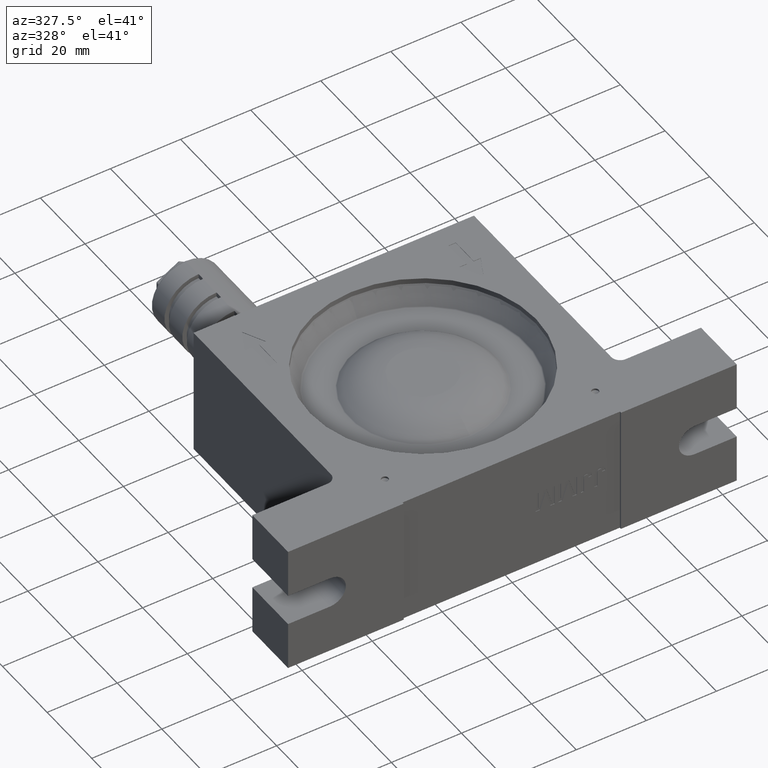
[diagram: clean part render]
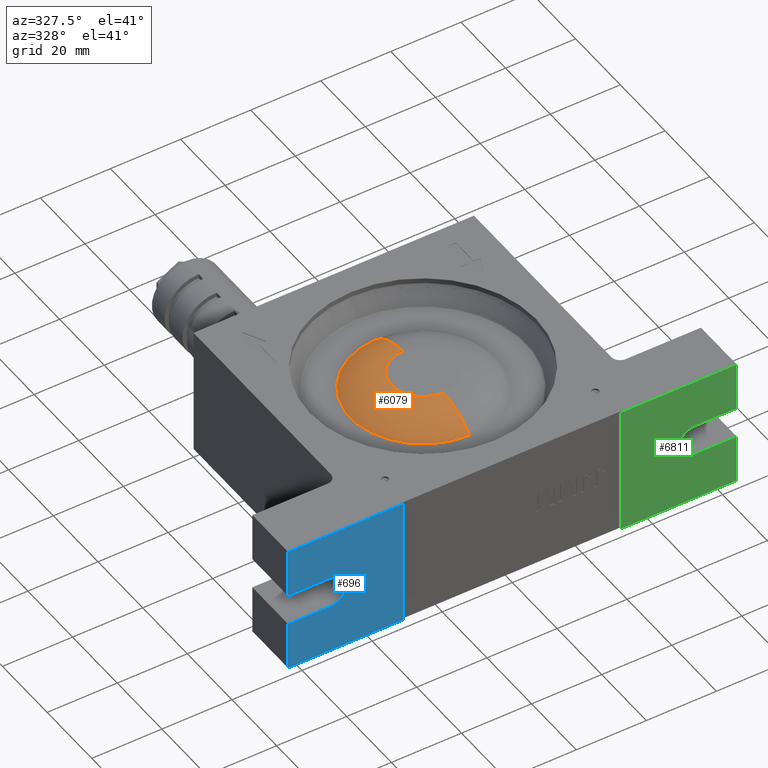
[diagram: same view with three faces highlighted in distinct colors, each labeled with its STEP entity id]
A machine part, auxiliary view with three faces highlighted in distinct colors.
Their STEP definitions:

[orange] entity #6079 — the highlighted toroidal blend (fillet) surface has major radius 9 mm and minor (blend) radius 16.8 mm.
#321 = AXIS2_PLACEMENT_3D ( 'NONE', #3349, #1087, #2191 ) ;
#433 = CARTESIAN_POINT ( 'NONE',  ( 3.427024385643870500E-015, 20.81392029005898400, 11.79450867052021800 ) ) ;
#641 = CARTESIAN_POINT ( 'NONE',  ( 1.356856098942547200E-015, 8.999999999999998200, -0.1500000000000091000 ) ) ;
#680 = EDGE_CURVE ( 'NONE', #3187, #2361, #4938, .T. ) ;
#732 = ORIENTED_EDGE ( 'NONE', *, *, #3168, .F. ) ;
#743 = DIRECTION ( 'NONE',  ( -2.889981336085087800E-016, -1.000000000000000000, 0.0000000000000000000 ) ) ;
#747 = ORIENTED_EDGE ( 'NONE', *, *, #5228, .T. ) ;
#1087 = DIRECTION ( 'NONE',  ( 8.602726321297810600E-018, 1.224606353822375800E-016, 1.000000000000000000 ) ) ;
#1288 = AXIS2_PLACEMENT_3D ( 'NONE', #1339, #3668, #743 ) ;
#1339 = CARTESIAN_POINT ( 'NONE',  ( -2.742928186777993200E-015, -9.000000000000001800, -0.1500000000000068800 ) ) ;
#2191 = DIRECTION ( 'NONE',  ( 1.665334536937734600E-016, 1.000000000000000000, 0.0000000000000000000 ) ) ;
#2361 = VERTEX_POINT ( 'NONE', #6377 ) ;
#2682 = VERTEX_POINT ( 'NONE', #4850 ) ;
#2703 = EDGE_CURVE ( 'NONE', #3187, #4899, #6901, .T. ) ;
#2741 = ORIENTED_EDGE ( 'NONE', *, *, #2703, .F. ) ;
#2990 = AXIS2_PLACEMENT_3D ( 'NONE', #641, #3509, #4675 ) ;
#3120 = DIRECTION ( 'NONE',  ( -1.665334536937734300E-016, -1.000000000000000000, 8.334438932224284400E-017 ) ) ;
#3144 = DIRECTION ( 'NONE',  ( 8.602726321297810600E-018, 1.224606353822375800E-016, 1.000000000000000000 ) ) ;
#3168 = EDGE_CURVE ( 'NONE', #4899, #2682, #6081, .T. ) ;
#3184 = AXIS2_PLACEMENT_3D ( 'NONE', #6609, #7248, #4929 ) ;
#3187 = VERTEX_POINT ( 'NONE', #433 ) ;
#3349 = CARTESIAN_POINT ( 'NONE',  ( 2.580817896389365400E-018, 3.673819061467395200E-017, 16.65000000000000200 ) ) ;
#3509 = DIRECTION ( 'NONE',  ( 1.000000000000000000, -1.665334536937734800E-016, -8.602726321297790500E-018 ) ) ;
#3668 = DIRECTION ( 'NONE',  ( -1.000000000000000000, 2.889981336085088300E-016, 8.602726321297775100E-018 ) ) ;
#3728 = EDGE_LOOP ( 'NONE', ( #5284, #747, #732, #2741 ) ) ;
#4393 = CIRCLE ( 'NONE', #1288, 16.80000000000000100 ) ;
#4437 = AXIS2_PLACEMENT_3D ( 'NONE', #5974, #3144, #3120 ) ;
#4675 = DIRECTION ( 'NONE',  ( 1.665334536937734800E-016, 1.000000000000000000, 0.0000000000000000000 ) ) ;
#4850 = CARTESIAN_POINT ( 'NONE',  ( -4.326388073325033000E-015, -9.000000000000000000, 16.65000000000000200 ) ) ;
#4899 = VERTEX_POINT ( 'NONE', #7483 ) ;
#4929 = DIRECTION ( 'NONE',  ( 1.665334536937735100E-016, 1.000000000000000000, -1.224606353822375800E-016 ) ) ;
#4938 = CIRCLE ( 'NONE', #4437, 20.81392029005900200 ) ;
#5228 = EDGE_CURVE ( 'NONE', #2361, #2682, #4393, .T. ) ;
#5284 = ORIENTED_EDGE ( 'NONE', *, *, #680, .T. ) ;
#5901 = FACE_OUTER_BOUND ( 'NONE', #3728, .T. ) ;
#5974 = CARTESIAN_POINT ( 'NONE',  ( -3.918964516655945500E-017, -2.719913548562489900E-016, 11.79450867052021900 ) ) ;
#6079 = ADVANCED_FACE ( 'NONE', ( #5901 ), #6713, .T. ) ;
#6081 = CIRCLE ( 'NONE', #321, 9.000000000000000000 ) ;
#6377 = CARTESIAN_POINT ( 'NONE',  ( -6.054373762069879400E-015, -20.81392029005898800, 11.79450867052022100 ) ) ;
#6609 = CARTESIAN_POINT ( 'NONE',  ( -1.419449843014140000E-016, -1.734723475976804900E-015, -0.1500000000000079900 ) ) ;
#6713 = TOROIDAL_SURFACE ( 'NONE', #3184, 9.000000000000000000, 16.80000000000000100 ) ;
#6901 = CIRCLE ( 'NONE', #2990, 16.80000000000000100 ) ;
#7248 = DIRECTION ( 'NONE',  ( 8.602726321297810600E-018, 1.224606353822375800E-016, 1.000000000000000000 ) ) ;
#7483 = CARTESIAN_POINT ( 'NONE',  ( 1.501381901140350500E-015, 9.000000000000000000, 16.65000000000000200 ) ) ;

[blue] entity #696 — the highlighted planar face has unit normal (0, 1, 0).
#90 = EDGE_CURVE ( 'NONE', #755, #4722, #4511, .T. ) ;
#347 = VECTOR ( 'NONE', #2110, 1000.000000000000000 ) ;
#460 = CARTESIAN_POINT ( 'NONE',  ( -52.00000000000000000, -40.00000000000000000, -4.500000000000000000 ) ) ;
#540 = CARTESIAN_POINT ( 'NONE',  ( -64.00000000000000000, -40.00000000000000000, -4.500000000000000000 ) ) ;
#545 = ORIENTED_EDGE ( 'NONE', *, *, #3522, .F. ) ;
#572 = DIRECTION ( 'NONE',  ( -1.000000000000000000, 0.0000000000000000000, 7.228014483236690600E-016 ) ) ;
#681 = LINE ( 'NONE', #4261, #5076 ) ;
#696 = ADVANCED_FACE ( 'NONE', ( #4844 ), #5405, .F. ) ;
#755 = VERTEX_POINT ( 'NONE', #2745 ) ;
#791 = AXIS2_PLACEMENT_3D ( 'NONE', #5117, #4044, #5135 ) ;
#1086 = VECTOR ( 'NONE', #6558, 1000.000000000000000 ) ;
#1420 = CARTESIAN_POINT ( 'NONE',  ( -64.00000000000000000, -40.00000000000000000, 18.50000000000000000 ) ) ;
#1496 = LINE ( 'NONE', #2700, #7440 ) ;
#1552 = EDGE_CURVE ( 'NONE', #3086, #755, #3590, .T. ) ;
#1878 = LINE ( 'NONE', #7418, #3866 ) ;
#1884 = CARTESIAN_POINT ( 'NONE',  ( -64.00000000000000000, -40.00000000000000000, 18.50000000000000000 ) ) ;
#1980 = DIRECTION ( 'NONE',  ( 1.000000000000000000, 0.0000000000000000000, 0.0000000000000000000 ) ) ;
#2110 = DIRECTION ( 'NONE',  ( 0.0000000000000000000, 0.0000000000000000000, -1.000000000000000000 ) ) ;
#2144 = CARTESIAN_POINT ( 'NONE',  ( -64.00000000000000000, -40.00000000000000000, 18.50000000000000000 ) ) ;
#2531 = CARTESIAN_POINT ( 'NONE',  ( -64.00000000000000000, -40.00000000000000000, -18.50000000000000000 ) ) ;
#2651 = ORIENTED_EDGE ( 'NONE', *, *, #5488, .T. ) ;
#2700 = CARTESIAN_POINT ( 'NONE',  ( -64.00000000000000000, -40.00000000000000000, 4.500000000000000000 ) ) ;
#2745 = CARTESIAN_POINT ( 'NONE',  ( -64.00000000000000000, -40.00000000000000000, -18.50000000000000000 ) ) ;
#2813 = VERTEX_POINT ( 'NONE', #5208 ) ;
#2831 = VERTEX_POINT ( 'NONE', #2952 ) ;
#2952 = CARTESIAN_POINT ( 'NONE',  ( -64.00000000000000000, -40.00000000000000000, 4.500000000000000000 ) ) ;
#3020 = LINE ( 'NONE', #1884, #3298 ) ;
#3086 = VERTEX_POINT ( 'NONE', #540 ) ;
#3235 = EDGE_CURVE ( 'NONE', #2831, #6776, #1496, .T. ) ;
#3298 = VECTOR ( 'NONE', #4757, 1000.000000000000000 ) ;
#3522 = EDGE_CURVE ( 'NONE', #2813, #6194, #681, .T. ) ;
#3590 = LINE ( 'NONE', #2144, #347 ) ;
#3657 = VERTEX_POINT ( 'NONE', #460 ) ;
#3866 = VECTOR ( 'NONE', #572, 1000.000000000000000 ) ;
#3879 = DIRECTION ( 'NONE',  ( 1.000000000000000000, 0.0000000000000000000, 1.445602896647339900E-016 ) ) ;
#3915 = ORIENTED_EDGE ( 'NONE', *, *, #4446, .T. ) ;
#4044 = DIRECTION ( 'NONE',  ( 0.0000000000000000000, 1.000000000000000000, 0.0000000000000000000 ) ) ;
#4152 = EDGE_CURVE ( 'NONE', #3657, #3086, #1878, .T. ) ;
#4244 = ORIENTED_EDGE ( 'NONE', *, *, #1552, .T. ) ;
#4255 = ORIENTED_EDGE ( 'NONE', *, *, #3235, .T. ) ;
#4261 = CARTESIAN_POINT ( 'NONE',  ( -64.00000000000000000, -40.00000000000000000, 18.50000000000000000 ) ) ;
#4410 = ORIENTED_EDGE ( 'NONE', *, *, #90, .T. ) ;
#4446 = EDGE_CURVE ( 'NONE', #4722, #6194, #6097, .T. ) ;
#4511 = LINE ( 'NONE', #2531, #1086 ) ;
#4579 = AXIS2_PLACEMENT_3D ( 'NONE', #1420, #6583, #7121 ) ;
#4642 = EDGE_LOOP ( 'NONE', ( #2651, #6340, #4244, #4410, #3915, #545, #6853, #4255 ) ) ;
#4722 = VERTEX_POINT ( 'NONE', #7366 ) ;
#4723 = CARTESIAN_POINT ( 'NONE',  ( -52.00000000000000000, -40.00000000000000000, 4.500000000000000000 ) ) ;
#4757 = DIRECTION ( 'NONE',  ( 0.0000000000000000000, 0.0000000000000000000, -1.000000000000000000 ) ) ;
#4844 = FACE_OUTER_BOUND ( 'NONE', #4642, .T. ) ;
#5076 = VECTOR ( 'NONE', #1980, 1000.000000000000000 ) ;
#5117 = CARTESIAN_POINT ( 'NONE',  ( -52.00000000000000000, -40.00000000000000000, -3.673940397442060000E-015 ) ) ;
#5135 = DIRECTION ( 'NONE',  ( 0.0000000000000000000, 0.0000000000000000000, -1.000000000000000000 ) ) ;
#5205 = EDGE_CURVE ( 'NONE', #2813, #2831, #3020, .T. ) ;
#5208 = CARTESIAN_POINT ( 'NONE',  ( -64.00000000000000000, -40.00000000000000000, 18.50000000000000000 ) ) ;
#5405 = PLANE ( 'NONE',  #4579 ) ;
#5488 = EDGE_CURVE ( 'NONE', #6776, #3657, #6176, .T. ) ;
#6097 = LINE ( 'NONE', #6478, #6192 ) ;
#6176 = CIRCLE ( 'NONE', #791, 4.500000000000000000 ) ;
#6192 = VECTOR ( 'NONE', #7057, 1000.000000000000000 ) ;
#6194 = VERTEX_POINT ( 'NONE', #6791 ) ;
#6340 = ORIENTED_EDGE ( 'NONE', *, *, #4152, .T. ) ;
#6478 = CARTESIAN_POINT ( 'NONE',  ( -31.00000000000000000, -40.00000000000000000, -18.50000000000000000 ) ) ;
#6558 = DIRECTION ( 'NONE',  ( 1.000000000000000000, 0.0000000000000000000, 0.0000000000000000000 ) ) ;
#6583 = DIRECTION ( 'NONE',  ( 0.0000000000000000000, 1.000000000000000000, 0.0000000000000000000 ) ) ;
#6776 = VERTEX_POINT ( 'NONE', #4723 ) ;
#6791 = CARTESIAN_POINT ( 'NONE',  ( -31.00000000000000000, -40.00000000000000000, 18.50000000000000000 ) ) ;
#6853 = ORIENTED_EDGE ( 'NONE', *, *, #5205, .T. ) ;
#7057 = DIRECTION ( 'NONE',  ( 0.0000000000000000000, 0.0000000000000000000, 1.000000000000000000 ) ) ;
#7121 = DIRECTION ( 'NONE',  ( 0.0000000000000000000, 0.0000000000000000000, 1.000000000000000000 ) ) ;
#7366 = CARTESIAN_POINT ( 'NONE',  ( -31.00000000000000000, -40.00000000000000000, -18.50000000000000000 ) ) ;
#7418 = CARTESIAN_POINT ( 'NONE',  ( -64.00000000000000000, -40.00000000000000000, -4.500000000000000000 ) ) ;
#7440 = VECTOR ( 'NONE', #3879, 1000.000000000000000 ) ;

[green] entity #6811 — the highlighted planar face has unit normal (0, 1, 0).
#41 = EDGE_CURVE ( 'NONE', #3026, #4684, #2434, .T. ) ;
#295 = DIRECTION ( 'NONE',  ( 0.0000000000000000000, 0.0000000000000000000, -1.000000000000000000 ) ) ;
#391 = DIRECTION ( 'NONE',  ( 0.0000000000000000000, 1.000000000000000000, 0.0000000000000000000 ) ) ;
#594 = VECTOR ( 'NONE', #295, 1000.000000000000000 ) ;
#669 = ORIENTED_EDGE ( 'NONE', *, *, #41, .F. ) ;
#700 = DIRECTION ( 'NONE',  ( 0.0000000000000000000, 0.0000000000000000000, 1.000000000000000000 ) ) ;
#765 = CARTESIAN_POINT ( 'NONE',  ( 64.00000000000000000, -40.00000000000000000, -4.500000000000000000 ) ) ;
#1033 = AXIS2_PLACEMENT_3D ( 'NONE', #3317, #391, #5548 ) ;
#1090 = CARTESIAN_POINT ( 'NONE',  ( 52.00000000000000000, -40.00000000000000000, -4.500000000000000000 ) ) ;
#1358 = EDGE_CURVE ( 'NONE', #4833, #3026, #7087, .T. ) ;
#1435 = ORIENTED_EDGE ( 'NONE', *, *, #6460, .T. ) ;
#1758 = ORIENTED_EDGE ( 'NONE', *, *, #7191, .T. ) ;
#1892 = CARTESIAN_POINT ( 'NONE',  ( 31.00000000000000000, -40.00000000000000000, -18.50000000000000000 ) ) ;
#2117 = LINE ( 'NONE', #3750, #594 ) ;
#2138 = VECTOR ( 'NONE', #5320, 1000.000000000000000 ) ;
#2434 = LINE ( 'NONE', #7040, #4855 ) ;
#2454 = PLANE ( 'NONE',  #2905 ) ;
#2580 = FACE_OUTER_BOUND ( 'NONE', #6414, .T. ) ;
#2716 = DIRECTION ( 'NONE',  ( -1.000000000000000000, 0.0000000000000000000, 2.891205793294680300E-016 ) ) ;
#2735 = CARTESIAN_POINT ( 'NONE',  ( 64.00000000000000000, -40.00000000000000000, -4.500000000000000000 ) ) ;
#2905 = AXIS2_PLACEMENT_3D ( 'NONE', #3540, #3613, #700 ) ;
#2973 = EDGE_CURVE ( 'NONE', #5931, #5253, #4387, .T. ) ;
#3026 = VERTEX_POINT ( 'NONE', #4154 ) ;
#3205 = CIRCLE ( 'NONE', #1033, 4.500000000000000000 ) ;
#3317 = CARTESIAN_POINT ( 'NONE',  ( 52.00000000000000000, -40.00000000000000000, -3.673940397442060000E-015 ) ) ;
#3540 = CARTESIAN_POINT ( 'NONE',  ( -64.00000000000000000, -40.00000000000000000, 18.50000000000000000 ) ) ;
#3613 = DIRECTION ( 'NONE',  ( 0.0000000000000000000, 1.000000000000000000, 0.0000000000000000000 ) ) ;
#3619 = CARTESIAN_POINT ( 'NONE',  ( -64.00000000000000000, -40.00000000000000000, -18.50000000000000000 ) ) ;
#3731 = DIRECTION ( 'NONE',  ( 0.0000000000000000000, 0.0000000000000000000, -1.000000000000000000 ) ) ;
#3744 = VERTEX_POINT ( 'NONE', #6797 ) ;
#3750 = CARTESIAN_POINT ( 'NONE',  ( 64.00000000000000000, -40.00000000000000000, 18.50000000000000000 ) ) ;
#3954 = ORIENTED_EDGE ( 'NONE', *, *, #6010, .F. ) ;
#4154 = CARTESIAN_POINT ( 'NONE',  ( 31.00000000000000000, -40.00000000000000000, 18.50000000000000000 ) ) ;
#4386 = VECTOR ( 'NONE', #2716, 1000.000000000000000 ) ;
#4387 = LINE ( 'NONE', #4639, #5082 ) ;
#4536 = ORIENTED_EDGE ( 'NONE', *, *, #5390, .T. ) ;
#4639 = CARTESIAN_POINT ( 'NONE',  ( 64.00000000000000000, -40.00000000000000000, 4.500000000000000000 ) ) ;
#4684 = VERTEX_POINT ( 'NONE', #7314 ) ;
#4736 = VECTOR ( 'NONE', #3731, 1000.000000000000000 ) ;
#4833 = VERTEX_POINT ( 'NONE', #5630 ) ;
#4855 = VECTOR ( 'NONE', #5926, 1000.000000000000000 ) ;
#4990 = ORIENTED_EDGE ( 'NONE', *, *, #5854, .F. ) ;
#5082 = VECTOR ( 'NONE', #6928, 1000.000000000000000 ) ;
#5235 = VERTEX_POINT ( 'NONE', #765 ) ;
#5253 = VERTEX_POINT ( 'NONE', #7115 ) ;
#5320 = DIRECTION ( 'NONE',  ( 1.000000000000000000, 0.0000000000000000000, 0.0000000000000000000 ) ) ;
#5390 = EDGE_CURVE ( 'NONE', #7141, #5931, #3205, .T. ) ;
#5485 = ORIENTED_EDGE ( 'NONE', *, *, #2973, .T. ) ;
#5486 = CARTESIAN_POINT ( 'NONE',  ( 52.00000000000000000, -40.00000000000000000, 4.500000000000000000 ) ) ;
#5548 = DIRECTION ( 'NONE',  ( 0.0000000000000000000, 0.0000000000000000000, 1.000000000000000000 ) ) ;
#5555 = LINE ( 'NONE', #3619, #2138 ) ;
#5630 = CARTESIAN_POINT ( 'NONE',  ( 31.00000000000000000, -40.00000000000000000, -18.50000000000000000 ) ) ;
#5854 = EDGE_CURVE ( 'NONE', #5235, #3744, #6435, .T. ) ;
#5926 = DIRECTION ( 'NONE',  ( 1.000000000000000000, 0.0000000000000000000, 0.0000000000000000000 ) ) ;
#5931 = VERTEX_POINT ( 'NONE', #5486 ) ;
#5971 = DIRECTION ( 'NONE',  ( 0.0000000000000000000, 0.0000000000000000000, 1.000000000000000000 ) ) ;
#6010 = EDGE_CURVE ( 'NONE', #4684, #5253, #2117, .T. ) ;
#6273 = VECTOR ( 'NONE', #5971, 1000.000000000000000 ) ;
#6414 = EDGE_LOOP ( 'NONE', ( #4536, #5485, #3954, #669, #7209, #1435, #4990, #1758 ) ) ;
#6435 = LINE ( 'NONE', #6569, #4736 ) ;
#6460 = EDGE_CURVE ( 'NONE', #4833, #3744, #5555, .T. ) ;
#6569 = CARTESIAN_POINT ( 'NONE',  ( 64.00000000000000000, -40.00000000000000000, 18.50000000000000000 ) ) ;
#6797 = CARTESIAN_POINT ( 'NONE',  ( 64.00000000000000000, -40.00000000000000000, -18.50000000000000000 ) ) ;
#6811 = ADVANCED_FACE ( 'NONE', ( #2580 ), #2454, .F. ) ;
#6928 = DIRECTION ( 'NONE',  ( 1.000000000000000000, 0.0000000000000000000, -2.891205793294680300E-016 ) ) ;
#7040 = CARTESIAN_POINT ( 'NONE',  ( -64.00000000000000000, -40.00000000000000000, 18.50000000000000000 ) ) ;
#7087 = LINE ( 'NONE', #1892, #6273 ) ;
#7115 = CARTESIAN_POINT ( 'NONE',  ( 64.00000000000000000, -40.00000000000000000, 4.500000000000000000 ) ) ;
#7141 = VERTEX_POINT ( 'NONE', #1090 ) ;
#7191 = EDGE_CURVE ( 'NONE', #5235, #7141, #7361, .T. ) ;
#7209 = ORIENTED_EDGE ( 'NONE', *, *, #1358, .F. ) ;
#7314 = CARTESIAN_POINT ( 'NONE',  ( 64.00000000000000000, -40.00000000000000000, 18.50000000000000000 ) ) ;
#7361 = LINE ( 'NONE', #2735, #4386 ) ;